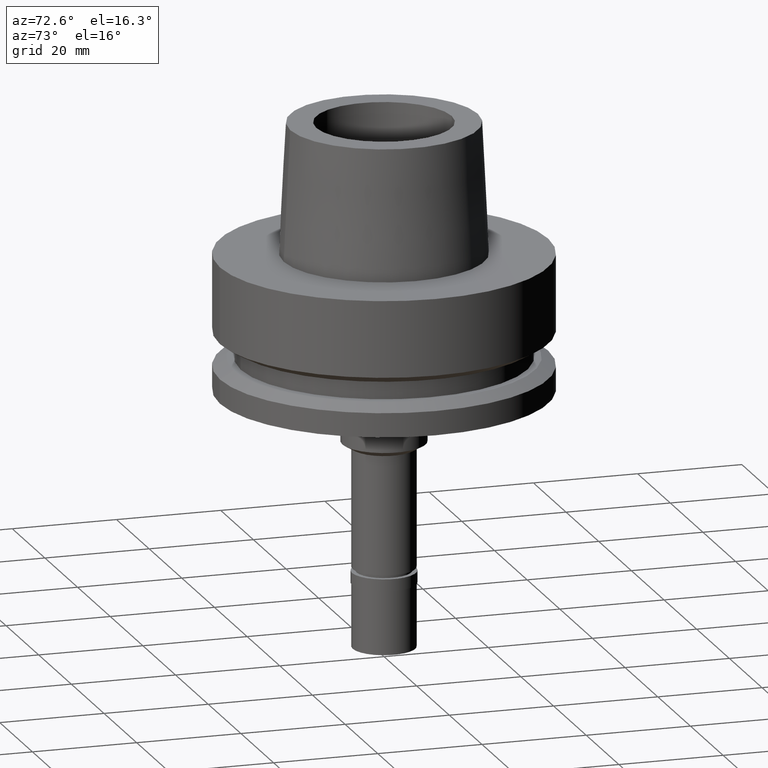
[diagram: clean part render]
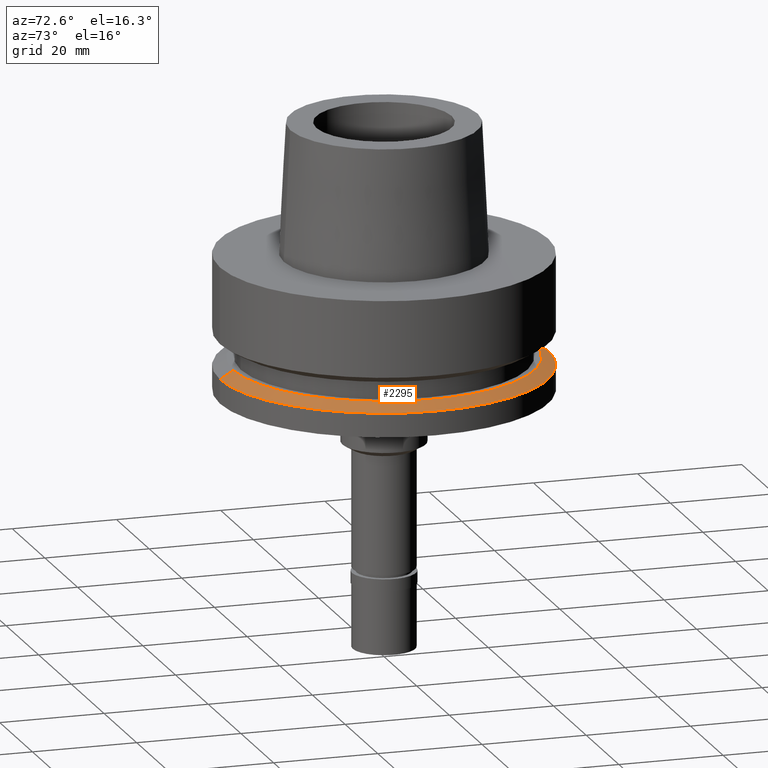
[diagram: same view with one face highlighted and labeled with its STEP entity id]
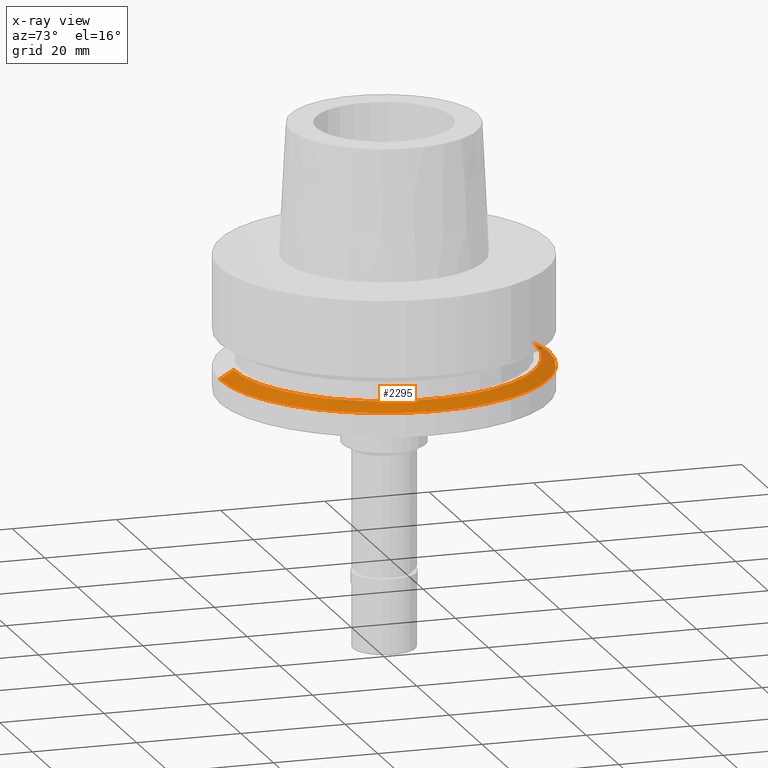
[diagram: x-ray of the same camera — body ghosted, the highlighted face saturated]
A machine part, auxiliary view. The second image highlights one B-rep face of the part: STEP entity #2295.
The next image is the same camera in x-ray: the body ghosted, the highlighted face saturated — about 0% of this face is hidden behind the body in this view.
In plain terms, the highlighted conical surface has half-angle 60 deg.
Its self-contained STEP definition (entity closure, byte-faithful):
#59 = ORIENTED_EDGE ( 'NONE', *, *, #1675, .F. ) ;
#74 = DIRECTION ( 'NONE',  ( 0.0000000000000000000, 1.000000000000000000, 0.0000000000000000000 ) ) ;
#223 = CARTESIAN_POINT ( 'NONE',  ( 0.0000000000000000000, 31.50000000000000000, -21.37749907476000288 ) ) ;
#307 = CIRCLE ( 'NONE', #2238, 28.89759526419000224 ) ;
#378 = VERTEX_POINT ( 'NONE', #223 ) ;
#404 = EDGE_LOOP ( 'NONE', ( #915, #2729, #2668, #59 ) ) ;
#422 = EDGE_CURVE ( 'NONE', #1784, #2257, #1513, .T. ) ;
#441 = CIRCLE ( 'NONE', #1300, 31.50000000000000000 ) ;
#500 = VERTEX_POINT ( 'NONE', #950 ) ;
#546 = CARTESIAN_POINT ( 'NONE',  ( 0.0000000000000000000, -28.89759526419000224, -19.87500000000000000 ) ) ;
#832 = DIRECTION ( 'NONE',  ( 0.0000000000000000000, 1.000000000000000000, 0.0000000000000000000 ) ) ;
#909 = CONICAL_SURFACE ( 'NONE', #1831, 30.19879763209999979, 1.047197551196400456 ) ;
#915 = ORIENTED_EDGE ( 'NONE', *, *, #1648, .T. ) ;
#933 = CARTESIAN_POINT ( 'NONE',  ( 0.0000000000000000000, 28.89759526419000224, -19.87500000000000000 ) ) ;
#950 = CARTESIAN_POINT ( 'NONE',  ( 0.0000000000000000000, 28.89759526419000224, -19.87500000000000000 ) ) ;
#1105 = DIRECTION ( 'NONE',  ( 0.0000000000000000000, -0.8660254037843856390, -0.5000000000000918154 ) ) ;
#1228 = CARTESIAN_POINT ( 'NONE',  ( 0.0000000000000000000, 0.0000000000000000000, -20.62624953738000144 ) ) ;
#1246 = DIRECTION ( 'NONE',  ( 0.0000000000000000000, 0.0000000000000000000, -1.000000000000000000 ) ) ;
#1254 = VECTOR ( 'NONE', #1331, 1000.000000000000000 ) ;
#1300 = AXIS2_PLACEMENT_3D ( 'NONE', #2358, #1246, #832 ) ;
#1329 = CARTESIAN_POINT ( 'NONE',  ( 0.0000000000000000000, -31.50000000000000000, -21.37749907476000288 ) ) ;
#1331 = DIRECTION ( 'NONE',  ( 0.0000000000000000000, 0.8660254037843856390, -0.5000000000000918154 ) ) ;
#1351 = DIRECTION ( 'NONE',  ( 0.0000000000000000000, 0.0000000000000000000, -1.000000000000000000 ) ) ;
#1370 = EDGE_CURVE ( 'NONE', #378, #2257, #441, .T. ) ;
#1513 = LINE ( 'NONE', #2384, #2475 ) ;
#1648 = EDGE_CURVE ( 'NONE', #500, #1784, #307, .T. ) ;
#1675 = EDGE_CURVE ( 'NONE', #500, #378, #1746, .T. ) ;
#1746 = LINE ( 'NONE', #933, #1254 ) ;
#1784 = VERTEX_POINT ( 'NONE', #546 ) ;
#1831 = AXIS2_PLACEMENT_3D ( 'NONE', #1228, #2078, #2521 ) ;
#1956 = CARTESIAN_POINT ( 'NONE',  ( 0.0000000000000000000, 0.0000000000000000000, -19.87500000000000000 ) ) ;
#2078 = DIRECTION ( 'NONE',  ( 0.0000000000000000000, 0.0000000000000000000, -1.000000000000000000 ) ) ;
#2238 = AXIS2_PLACEMENT_3D ( 'NONE', #1956, #1351, #74 ) ;
#2257 = VERTEX_POINT ( 'NONE', #1329 ) ;
#2295 = ADVANCED_FACE ( 'NONE', ( #2533 ), #909, .T. ) ;
#2358 = CARTESIAN_POINT ( 'NONE',  ( 0.0000000000000000000, 0.0000000000000000000, -21.37749907476000288 ) ) ;
#2384 = CARTESIAN_POINT ( 'NONE',  ( 0.0000000000000000000, -28.89759526419000224, -19.87500000000000000 ) ) ;
#2475 = VECTOR ( 'NONE', #1105, 1000.000000000000000 ) ;
#2521 = DIRECTION ( 'NONE',  ( 0.0000000000000000000, -1.000000000000000000, 0.0000000000000000000 ) ) ;
#2533 = FACE_OUTER_BOUND ( 'NONE', #404, .T. ) ;
#2668 = ORIENTED_EDGE ( 'NONE', *, *, #1370, .F. ) ;
#2729 = ORIENTED_EDGE ( 'NONE', *, *, #422, .T. ) ;